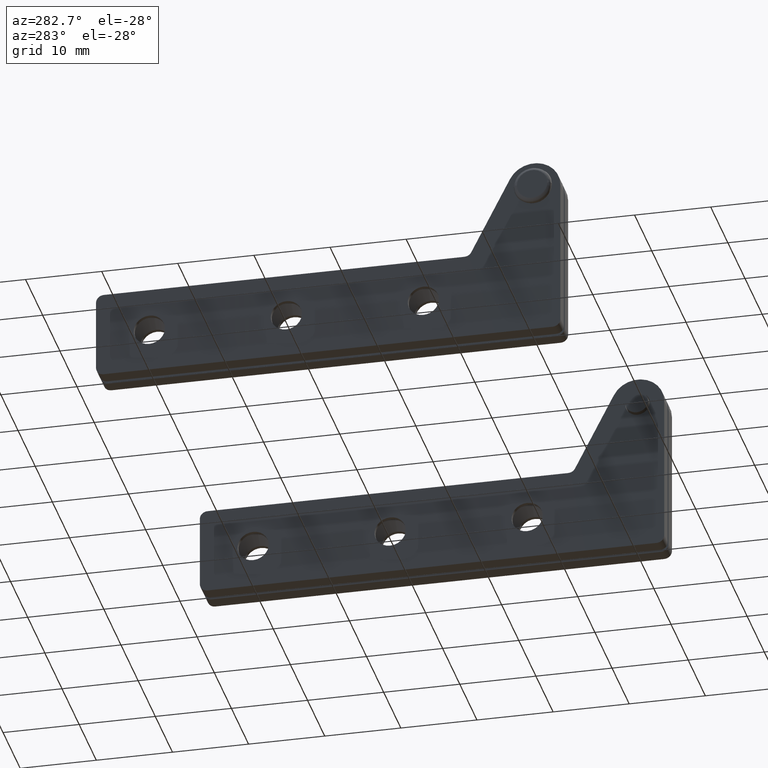
[diagram: clean part render]
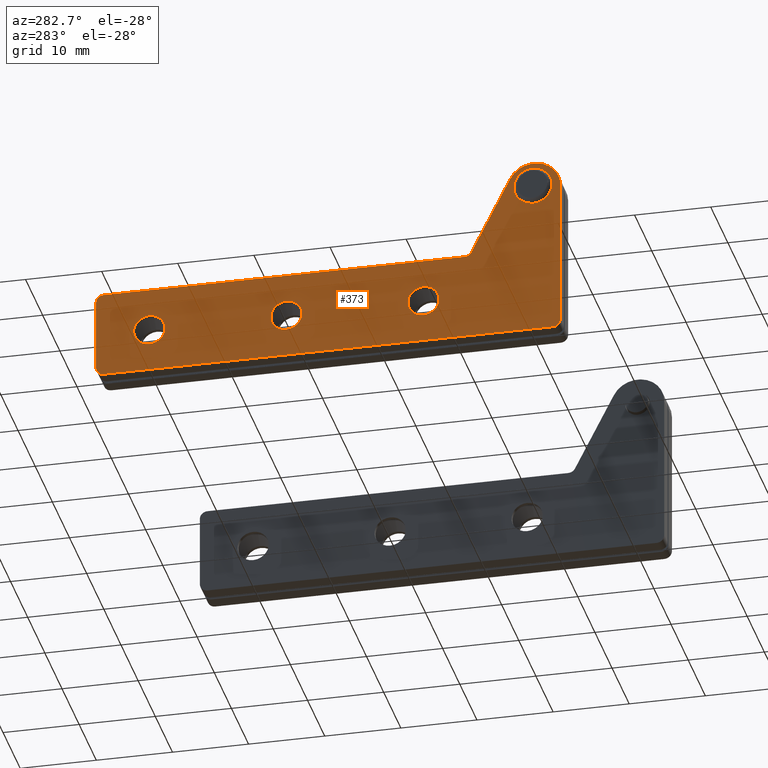
[diagram: same view with one face highlighted and labeled with its STEP entity id]
A machine part, auxiliary view. The second image highlights one B-rep face of the part: STEP entity #373.
In plain terms, the highlighted planar face has unit normal (-1, 0, -0).
Its self-contained STEP definition (entity closure, byte-faithful):
#373=ADVANCED_FACE('',(#866,#867,#868,#869,#870),#865,.T.);
#865=PLANE('',#2129);
#866=FACE_OUTER_BOUND('',#2130,.T.);
#867=FACE_BOUND('',#2131,.T.);
#868=FACE_BOUND('',#2132,.T.);
#869=FACE_BOUND('',#2133,.T.);
#870=FACE_BOUND('',#2134,.T.);
#2126=CARTESIAN_POINT('',(-6.36000000000E+001,2.00000000000E+000,-4.75014629499E+001));
#2127=DIRECTION('',(-0.00000000000E+000,1.00000000000E+000,0.00000000000E+000));
#2128=DIRECTION('',(0.00000000000E+000,0.00000000000E+000,1.00000000000E+000));
#2129=AXIS2_PLACEMENT_3D('',#2126,#2127,#2128);
#2130=EDGE_LOOP('',(#2980,#2981,#2982,#2983,#2984,#2985,#2986,#2987,#2988,#2989));
#2131=EDGE_LOOP('',(#2990,#2991));
#2132=EDGE_LOOP('',(#2992,#2993));
#2133=EDGE_LOOP('',(#2994,#2995));
#2134=EDGE_LOOP('',(#2996,#2997));
#2980=ORIENTED_EDGE('',*,*,#3521,.T.);
#2981=ORIENTED_EDGE('',*,*,#3522,.T.);
#2982=ORIENTED_EDGE('',*,*,#3523,.T.);
#2983=ORIENTED_EDGE('',*,*,#3524,.T.);
#2984=ORIENTED_EDGE('',*,*,#3525,.T.);
#2985=ORIENTED_EDGE('',*,*,#3526,.T.);
#2986=ORIENTED_EDGE('',*,*,#3527,.F.);
#2987=ORIENTED_EDGE('',*,*,#3528,.T.);
#2988=ORIENTED_EDGE('',*,*,#3529,.T.);
#2989=ORIENTED_EDGE('',*,*,#3530,.T.);
#2990=ORIENTED_EDGE('',*,*,#3531,.F.);
#2991=ORIENTED_EDGE('',*,*,#3532,.F.);
#2992=ORIENTED_EDGE('',*,*,#3533,.F.);
#2993=ORIENTED_EDGE('',*,*,#3534,.F.);
#2994=ORIENTED_EDGE('',*,*,#3535,.F.);
#2995=ORIENTED_EDGE('',*,*,#3536,.F.);
#2996=ORIENTED_EDGE('',*,*,#3537,.F.);
#2997=ORIENTED_EDGE('',*,*,#3538,.F.);
#3521=EDGE_CURVE('',#4351,#4352,#4353,.T.);
#3522=EDGE_CURVE('',#4352,#4359,#4360,.T.);
#3523=EDGE_CURVE('',#4359,#4366,#4367,.T.);
#3524=EDGE_CURVE('',#4366,#4373,#4374,.T.);
#3525=EDGE_CURVE('',#4373,#4380,#4381,.T.);
#3526=EDGE_CURVE('',#4380,#4387,#4388,.T.);
#3527=EDGE_CURVE('',#4394,#4387,#4395,.T.);
#3528=EDGE_CURVE('',#4394,#4401,#4402,.T.);
#3529=EDGE_CURVE('',#4401,#4408,#4409,.T.);
#3530=EDGE_CURVE('',#4408,#4351,#4415,.T.);
#3531=EDGE_CURVE('',#4421,#4422,#4423,.T.);
#3532=EDGE_CURVE('',#4422,#4421,#4429,.T.);
#3533=EDGE_CURVE('',#4435,#4436,#4437,.T.);
#3534=EDGE_CURVE('',#4436,#4435,#4443,.T.);
#3535=EDGE_CURVE('',#4449,#4450,#4451,.T.);
#3536=EDGE_CURVE('',#4450,#4449,#4457,.T.);
#3537=EDGE_CURVE('',#4463,#4464,#4465,.T.);
#3538=EDGE_CURVE('',#4464,#4463,#4471,.T.);
#4351=VERTEX_POINT('',#6211);
#4352=VERTEX_POINT('',#6212);
#4353=CIRCLE('',#6216,1.00000000000E+000);
#4359=VERTEX_POINT('',#6217);
#4360=LINE('',#6218,#6219);
#4366=VERTEX_POINT('',#6221);
#4367=CIRCLE('',#6225,1.00000000000E+000);
#4373=VERTEX_POINT('',#6226);
#4374=LINE('',#6227,#6228);
#4380=VERTEX_POINT('',#6230);
#4381=CIRCLE('',#6234,3.50000000000E+000);
#4387=VERTEX_POINT('',#6235);
#4388=LINE('',#6236,#6237);
#4394=VERTEX_POINT('',#6239);
#4395=CIRCLE('',#6243,1.00000000000E+000);
#4401=VERTEX_POINT('',#6244);
#4402=LINE('',#6245,#6246);
#4408=VERTEX_POINT('',#6248);
#4409=CIRCLE('',#6252,1.00000000000E+000);
#4415=LINE('',#6253,#6254);
#4421=VERTEX_POINT('',#6256);
#4422=VERTEX_POINT('',#6257);
#4423=CIRCLE('',#6261,1.60000000000E+000);
#4429=CIRCLE('',#6265,1.60000000000E+000);
#4435=VERTEX_POINT('',#6266);
#4436=VERTEX_POINT('',#6267);
#4437=CIRCLE('',#6271,2.05000000000E+000);
#4443=CIRCLE('',#6275,2.05000000000E+000);
#4449=VERTEX_POINT('',#6276);
#4450=VERTEX_POINT('',#6277);
#4451=CIRCLE('',#6281,2.05000000000E+000);
#4457=CIRCLE('',#6285,2.05000000000E+000);
#4463=VERTEX_POINT('',#6286);
#4464=VERTEX_POINT('',#6287);
#4465=CIRCLE('',#6291,2.05000000000E+000);
#4471=CIRCLE('',#6295,2.05000000000E+000);
#6211=CARTESIAN_POINT('',(-5.75000000000E+001,2.00000000000E+000,-2.15000000000E+001));
#6212=CARTESIAN_POINT('',(-5.65000000000E+001,2.00000000000E+000,-2.05000000000E+001));
#6213=CARTESIAN_POINT('',(-5.65000000000E+001,2.00000000000E+000,-2.15000000000E+001));
#6214=DIRECTION('',(-0.00000000000E+000,1.00000000000E+000,0.00000000000E+000));
#6215=DIRECTION('',(-0.00000000000E+000,-0.00000000000E+000,1.00000000000E+000));
#6216=AXIS2_PLACEMENT_3D('',#6213,#6214,#6215);
#6217=CARTESIAN_POINT('',(2.50000000000E+000,2.00000000000E+000,-2.05000000000E+001));
#6218=CARTESIAN_POINT('',(-5.65000000000E+001,2.00000000000E+000,-2.05000000000E+001));
#6219=VECTOR('',#6220,5.90000000000E+001);
#6220=DIRECTION('',(1.00000000000E+000,0.00000000000E+000,0.00000000000E+000));
#6221=CARTESIAN_POINT('',(3.50000000000E+000,2.00000000000E+000,-2.15000000000E+001));
#6222=CARTESIAN_POINT('',(2.50000000000E+000,2.00000000000E+000,-2.15000000000E+001));
#6223=DIRECTION('',(-0.00000000000E+000,1.00000000000E+000,0.00000000000E+000));
#6224=DIRECTION('',(-0.00000000000E+000,-0.00000000000E+000,1.00000000000E+000));
#6225=AXIS2_PLACEMENT_3D('',#6222,#6223,#6224);
#6226=CARTESIAN_POINT('',(3.50000000000E+000,2.00000000000E+000,-4.10000000000E+001));
#6227=CARTESIAN_POINT('',(3.50000000000E+000,2.00000000000E+000,-2.15000000000E+001));
#6228=VECTOR('',#6229,1.95000000000E+001);
#6229=DIRECTION('',(0.00000000000E+000,0.00000000000E+000,-1.00000000000E+000));
#6230=CARTESIAN_POINT('',(-3.12017471936E+000,2.00000000000E+000,-4.25857205683E+001));
#6231=CARTESIAN_POINT('',(0.00000000000E+000,2.00000000000E+000,-4.10000000000E+001));
#6232=DIRECTION('',(-0.00000000000E+000,1.00000000000E+000,0.00000000000E+000));
#6233=DIRECTION('',(-0.00000000000E+000,-0.00000000000E+000,1.00000000000E+000));
#6234=AXIS2_PLACEMENT_3D('',#6231,#6232,#6233);
#6235=CARTESIAN_POINT('',(-8.22203825185E+000,2.00000000000E+000,-3.25469369805E+001));
#6236=CARTESIAN_POINT('',(-3.12017471936E+000,2.00000000000E+000,-4.25857205683E+001));
#6237=VECTOR('',#6238,1.12608253439E+001);
#6238=DIRECTION('',(-4.53063019509E-001,0.00000000000E+000,8.91478491245E-001));
#6239=CARTESIAN_POINT('',(-9.11351674310E+000,2.00000000000E+000,-3.20000000000E+001));
#6240=CARTESIAN_POINT('',(-9.11351674310E+000,2.00000000000E+000,-3.30000000000E+001));
#6241=DIRECTION('',(-0.00000000000E+000,1.00000000000E+000,0.00000000000E+000));
#6242=DIRECTION('',(-0.00000000000E+000,-0.00000000000E+000,1.00000000000E+000));
#6243=AXIS2_PLACEMENT_3D('',#6240,#6241,#6242);
#6244=CARTESIAN_POINT('',(-5.65000000000E+001,2.00000000000E+000,-3.20000000000E+001));
#6245=CARTESIAN_POINT('',(-9.11351674310E+000,2.00000000000E+000,-3.20000000000E+001));
#6246=VECTOR('',#6247,4.73864832569E+001);
#6247=DIRECTION('',(-1.00000000000E+000,0.00000000000E+000,0.00000000000E+000));
#6248=CARTESIAN_POINT('',(-5.75000000000E+001,2.00000000000E+000,-3.10000000000E+001));
#6249=CARTESIAN_POINT('',(-5.65000000000E+001,2.00000000000E+000,-3.10000000000E+001));
#6250=DIRECTION('',(-0.00000000000E+000,1.00000000000E+000,0.00000000000E+000));
#6251=DIRECTION('',(-0.00000000000E+000,-0.00000000000E+000,1.00000000000E+000));
#6252=AXIS2_PLACEMENT_3D('',#6249,#6250,#6251);
#6253=CARTESIAN_POINT('',(-5.75000000000E+001,2.00000000000E+000,-3.10000000000E+001));
#6254=VECTOR('',#6255,9.50000000000E+000);
#6255=DIRECTION('',(0.00000000000E+000,0.00000000000E+000,1.00000000000E+000));
#6256=CARTESIAN_POINT('',(0.00000000000E+000,2.00000000001E+000,-4.26000000000E+001));
#6257=CARTESIAN_POINT('',(0.00000000000E+000,2.00000000001E+000,-3.94000000000E+001));
#6258=CARTESIAN_POINT('',(0.00000000000E+000,2.00000000001E+000,-4.10000000000E+001));
#6259=DIRECTION('',(0.00000000000E+000,1.00000000000E+000,-0.00000000000E+000));
#6260=DIRECTION('',(-1.22460635382E-016,0.00000000000E+000,1.00000000000E+000));
#6261=AXIS2_PLACEMENT_3D('',#6258,#6259,#6260);
#6262=CARTESIAN_POINT('',(0.00000000000E+000,2.00000000001E+000,-4.10000000000E+001));
#6263=DIRECTION('',(0.00000000000E+000,1.00000000000E+000,-0.00000000000E+000));
#6264=DIRECTION('',(-1.22460635382E-016,0.00000000000E+000,1.00000000000E+000));
#6265=AXIS2_PLACEMENT_3D('',#6262,#6263,#6264);
#6266=CARTESIAN_POINT('',(-5.05000000000E+001,2.00000000000E+000,-2.42000000000E+001));
#6267=CARTESIAN_POINT('',(-5.05000000000E+001,2.00000000000E+000,-2.83000000000E+001));
#6268=CARTESIAN_POINT('',(-5.05000000000E+001,2.00000000000E+000,-2.62500000000E+001));
#6269=DIRECTION('',(0.00000000000E+000,1.00000000000E+000,0.00000000000E+000));
#6270=DIRECTION('',(-1.22460635382E-016,0.00000000000E+000,-1.00000000000E+000));
#6271=AXIS2_PLACEMENT_3D('',#6268,#6269,#6270);
#6272=CARTESIAN_POINT('',(-5.05000000000E+001,2.00000000000E+000,-2.62500000000E+001));
#6273=DIRECTION('',(0.00000000000E+000,1.00000000000E+000,0.00000000000E+000));
#6274=DIRECTION('',(-1.22460635382E-016,0.00000000000E+000,-1.00000000000E+000));
#6275=AXIS2_PLACEMENT_3D('',#6272,#6273,#6274);
#6276=CARTESIAN_POINT('',(-3.25000000000E+001,2.00000000000E+000,-2.42000000000E+001));
#6277=CARTESIAN_POINT('',(-3.25000000000E+001,2.00000000000E+000,-2.83000000000E+001));
#6278=CARTESIAN_POINT('',(-3.25000000000E+001,2.00000000000E+000,-2.62500000000E+001));
#6279=DIRECTION('',(0.00000000000E+000,1.00000000000E+000,0.00000000000E+000));
#6280=DIRECTION('',(-1.22460635382E-016,0.00000000000E+000,-1.00000000000E+000));
#6281=AXIS2_PLACEMENT_3D('',#6278,#6279,#6280);
#6282=CARTESIAN_POINT('',(-3.25000000000E+001,2.00000000000E+000,-2.62500000000E+001));
#6283=DIRECTION('',(0.00000000000E+000,1.00000000000E+000,0.00000000000E+000));
#6284=DIRECTION('',(-1.22460635382E-016,0.00000000000E+000,-1.00000000000E+000));
#6285=AXIS2_PLACEMENT_3D('',#6282,#6283,#6284);
#6286=CARTESIAN_POINT('',(-1.45000000000E+001,2.00000000000E+000,-2.42000000000E+001));
#6287=CARTESIAN_POINT('',(-1.45000000000E+001,2.00000000000E+000,-2.83000000000E+001));
#6288=CARTESIAN_POINT('',(-1.45000000000E+001,2.00000000000E+000,-2.62500000000E+001));
#6289=DIRECTION('',(0.00000000000E+000,1.00000000000E+000,0.00000000000E+000));
#6290=DIRECTION('',(-1.22460635382E-016,0.00000000000E+000,-1.00000000000E+000));
#6291=AXIS2_PLACEMENT_3D('',#6288,#6289,#6290);
#6292=CARTESIAN_POINT('',(-1.45000000000E+001,2.00000000000E+000,-2.62500000000E+001));
#6293=DIRECTION('',(0.00000000000E+000,1.00000000000E+000,0.00000000000E+000));
#6294=DIRECTION('',(-1.22460635382E-016,0.00000000000E+000,-1.00000000000E+000));
#6295=AXIS2_PLACEMENT_3D('',#6292,#6293,#6294);